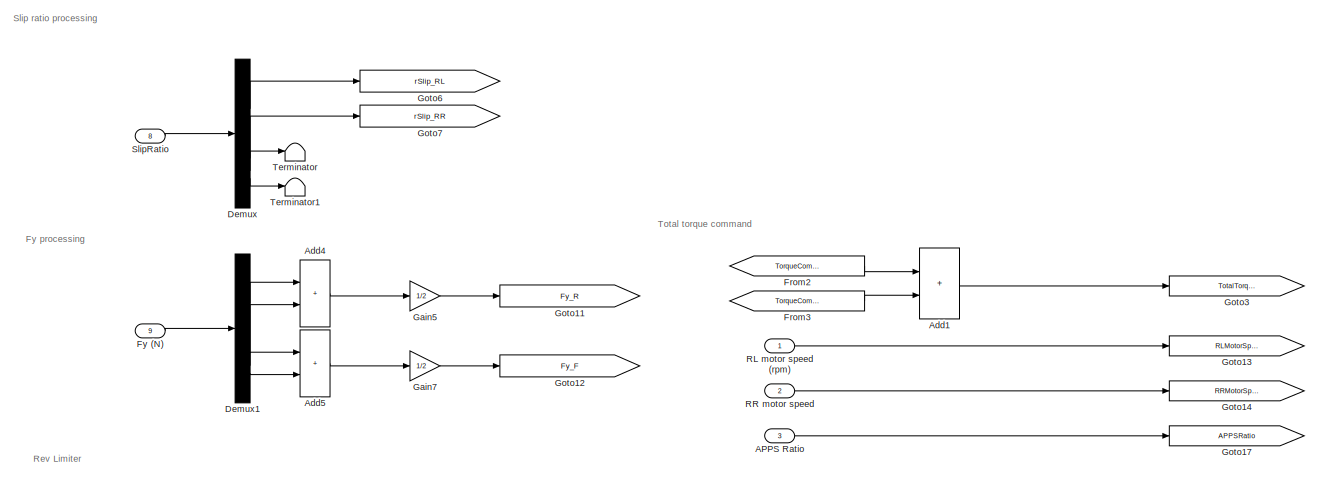
[diagram: root canvas - part 1/5, full width, top band]
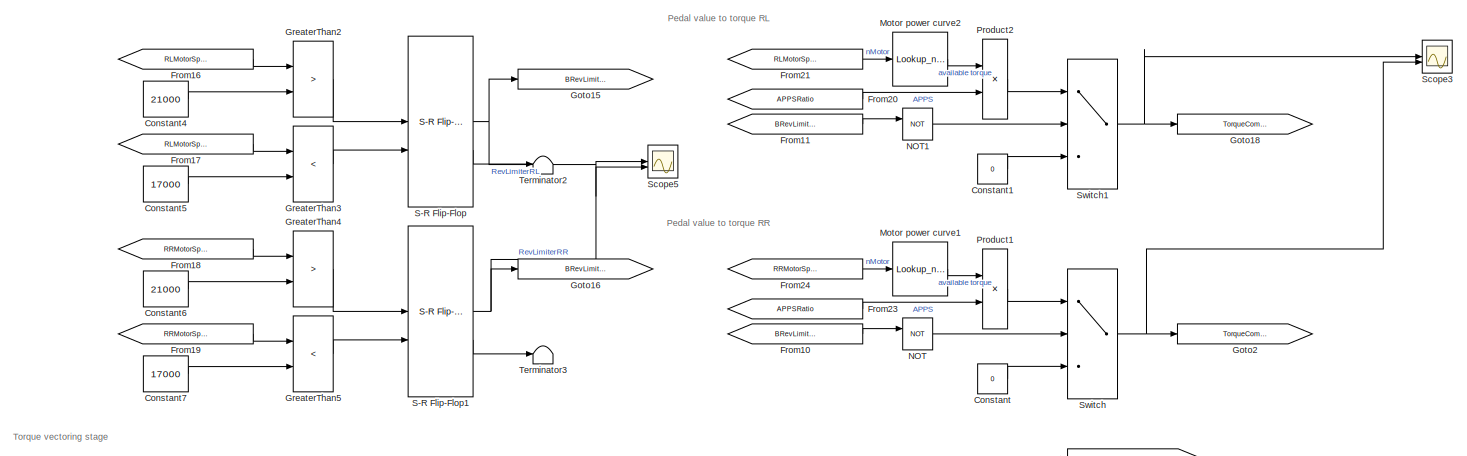
[diagram: root canvas - part 2/5, full width, top band]
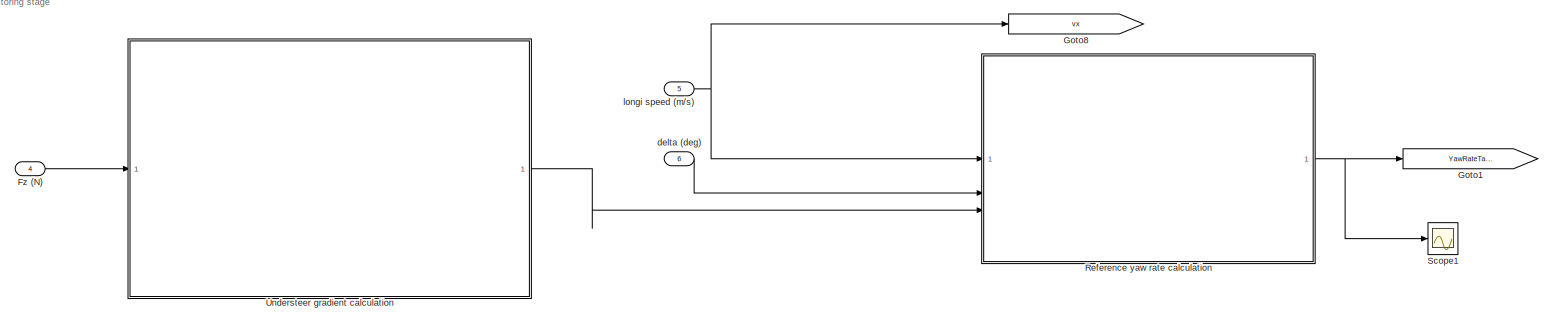
[diagram: root canvas - part 3/5, full width, middle band]
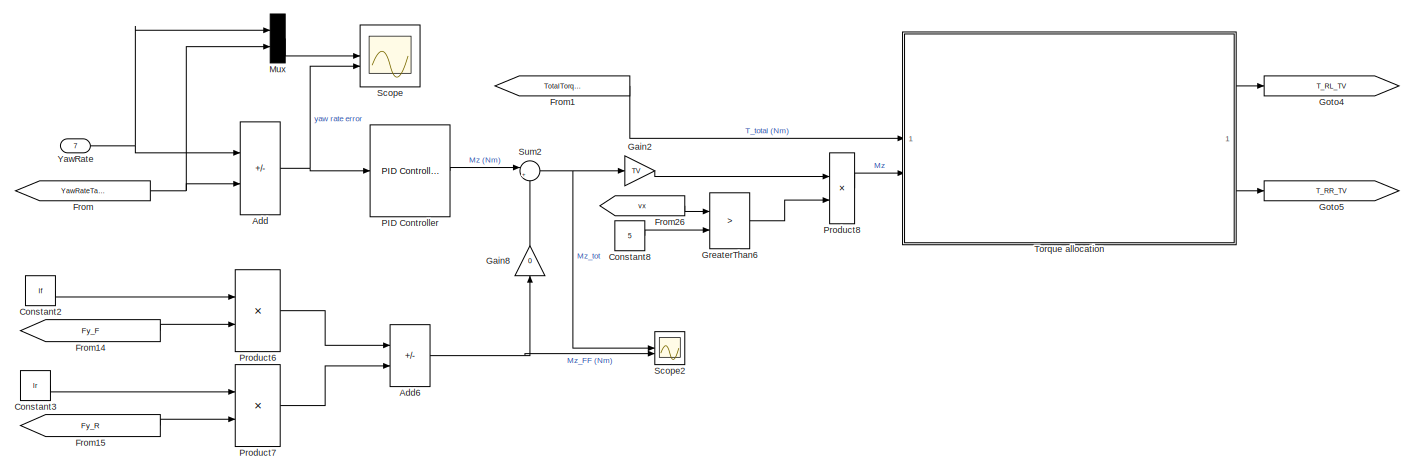
[diagram: root canvas - part 4/5, full width, middle band]
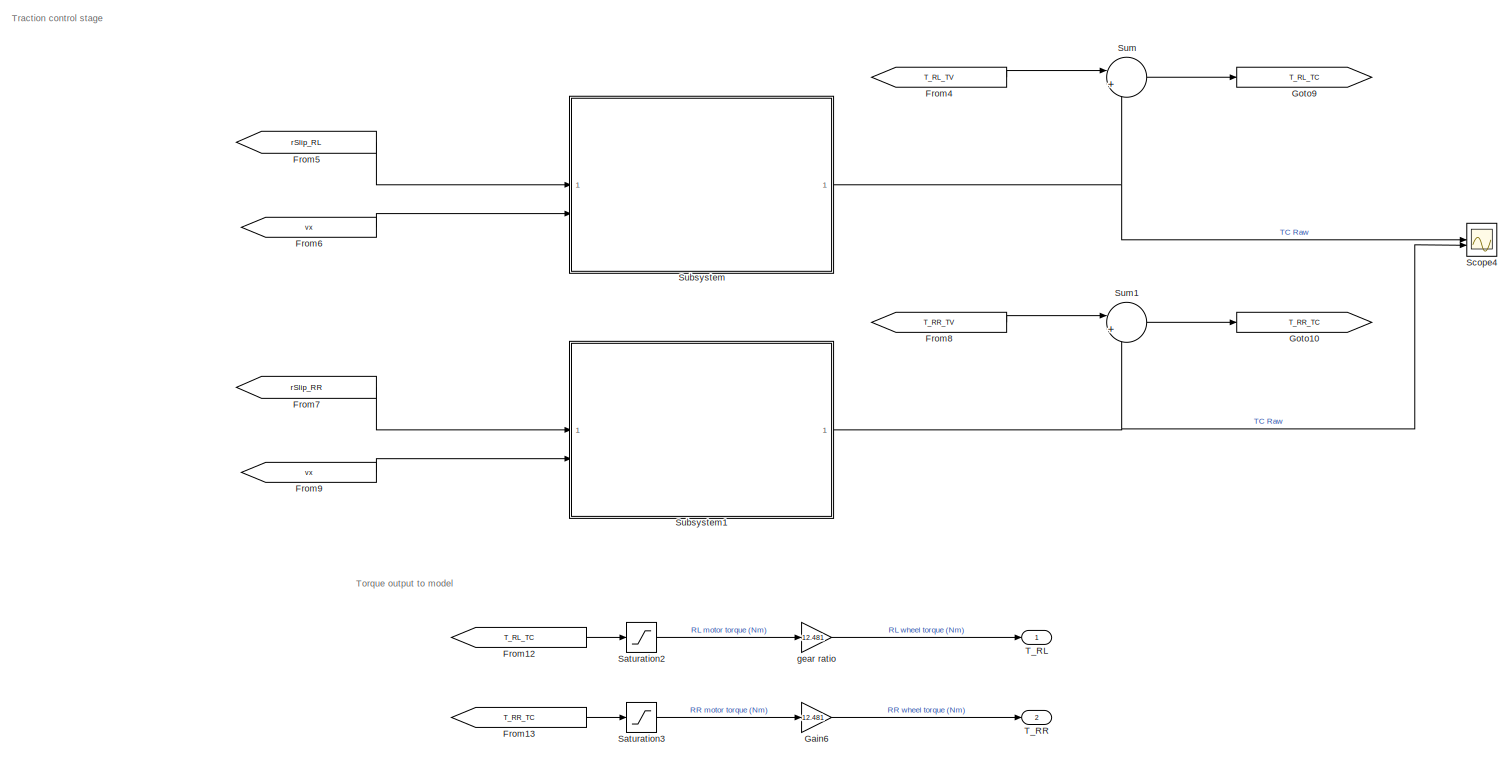
[diagram: root canvas - part 5/5, full width, bottom band]
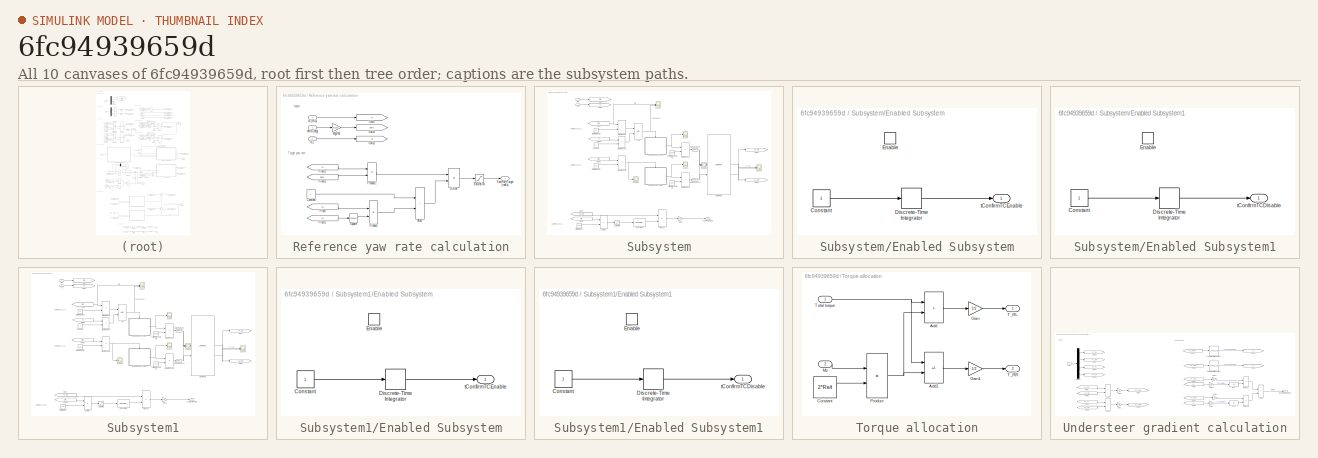
[diagram: thumbnail index - all 10 canvases of the model, root first then tree order]
MODEL slx_6fc94939659d
KIND model
CONFIG AbsTol = auto
CONFIG EnableMultiTasking = off
CONFIG FixedStep = Ts
CONFIG MaxStep = auto
CONFIG MinStep = auto
CONFIG RelTol = 1e-3
CONFIG SampleTimeConstraint = Unconstrained
CONFIG SolverName = FixedStepDiscrete
CONFIG StartTime = 0.0
CONFIG StopTime = 10.0
BLOCK [Inport] APPS Ratio
  Port = 3
BLOCK [Sum] Add
  IconShape = rectangular
  Inputs = +-
BLOCK [Sum] Add1
  IconShape = rectangular
BLOCK [Sum] Add4
  IconShape = rectangular
BLOCK [Sum] Add5
  IconShape = rectangular
BLOCK [Sum] Add6
  IconShape = rectangular
  Inputs = +-
BLOCK [Constant] Constant
  Value = 0
BLOCK [Constant] Constant1
  Value = 0
BLOCK [Constant] Constant2
  Value = lf
BLOCK [Constant] Constant3
  Value = lr
BLOCK [Constant] Constant4
  Value = 21000
BLOCK [Constant] Constant5
  Value = 17000
BLOCK [Constant] Constant6
  Value = 21000
BLOCK [Constant] Constant7
  Value = 17000
BLOCK [Constant] Constant8
  Value = 5
BLOCK [Demux] Demux
BLOCK [Demux] Demux1
BLOCK [From] From
  GotoTag = YawRateTarget
BLOCK [From] From1
  GotoTag = TotalTorque
BLOCK [From] From10
  GotoTag = BRevLimiterOnRR
BLOCK [From] From11
  GotoTag = BRevLimiterOnRR
BLOCK [From] From12
  GotoTag = T_RL_TC
BLOCK [From] From13
  GotoTag = T_RR_TC
BLOCK [From] From14
  GotoTag = Fy_F
BLOCK [From] From15
  GotoTag = Fy_R
BLOCK [From] From16
  GotoTag = RLMotorSpeed
BLOCK [From] From17
  GotoTag = RLMotorSpeed
BLOCK [From] From18
  GotoTag = RRMotorSpeed
BLOCK [From] From19
  GotoTag = RRMotorSpeed
BLOCK [From] From2
  GotoTag = TorqueCommandRL
BLOCK [From] From20
  GotoTag = APPSRatio
BLOCK [From] From21
  GotoTag = RLMotorSpeed
BLOCK [From] From23
  GotoTag = APPSRatio
BLOCK [From] From24
  GotoTag = RRMotorSpeed
BLOCK [From] From26
  GotoTag = vx
BLOCK [From] From3
  GotoTag = TorqueCommandRR
BLOCK [From] From4
  GotoTag = T_RL_TV
BLOCK [From] From5
  GotoTag = rSlip_RL
BLOCK [From] From6
  GotoTag = vx
BLOCK [From] From7
  GotoTag = rSlip_RR
BLOCK [From] From8
  GotoTag = T_RR_TV
BLOCK [From] From9
  GotoTag = vx
BLOCK [Inport] Fy (N)
  Port = 9
BLOCK [Inport] Fz (N)
  Port = 4
BLOCK [Gain] Gain2
  Gain = TV
BLOCK [Gain] Gain5
  Gain = 1/2
BLOCK [Gain] Gain6
  Gain = 12.481
BLOCK [Gain] Gain7
  Gain = 1/2
BLOCK [Gain] Gain8
  Gain = 0
  NameLocation = right
BLOCK [Goto] Goto1
  GotoTag = YawRateTarget
BLOCK [Goto] Goto10
  GotoTag = T_RR_TC
BLOCK [Goto] Goto11
  GotoTag = Fy_R
BLOCK [Goto] Goto12
  GotoTag = Fy_F
BLOCK [Goto] Goto13
  GotoTag = RLMotorSpeed
BLOCK [Goto] Goto14
  GotoTag = RRMotorSpeed
BLOCK [Goto] Goto15
  GotoTag = BRevLimiterOnRL
BLOCK [Goto] Goto16
  GotoTag = BRevLimiterOnRR
BLOCK [Goto] Goto17
  GotoTag = APPSRatio
BLOCK [Goto] Goto18
  GotoTag = TorqueCommandRL
BLOCK [Goto] Goto2
  GotoTag = TorqueCommandRR
BLOCK [Goto] Goto3
  GotoTag = TotalTorque
BLOCK [Goto] Goto4
  GotoTag = T_RL_TV
BLOCK [Goto] Goto5
  GotoTag = T_RR_TV
BLOCK [Goto] Goto6
  GotoTag = rSlip_RL
BLOCK [Goto] Goto7
  GotoTag = rSlip_RR
BLOCK [Goto] Goto8
  GotoTag = vx
BLOCK [Goto] Goto9
  GotoTag = T_RL_TC
BLOCK [RelationalOperator] GreaterThan2
  InputSameDT = off
  Operator = >
  OutDataTypeStr = boolean
  RndMeth = Simplest
BLOCK [RelationalOperator] GreaterThan3
  InputSameDT = off
  Operator = <
  OutDataTypeStr = boolean
  RndMeth = Simplest
BLOCK [RelationalOperator] GreaterThan4
  InputSameDT = off
  Operator = >
  OutDataTypeStr = boolean
  RndMeth = Simplest
BLOCK [RelationalOperator] GreaterThan5
  InputSameDT = off
  Operator = <
  OutDataTypeStr = boolean
  RndMeth = Simplest
BLOCK [RelationalOperator] GreaterThan6
  InputSameDT = off
  Operator = >
  OutDataTypeStr = boolean
  RndMeth = Simplest
BLOCK [Lookup_n-D] Motor power curve1
  BreakpointsForDimension1 = [0 11500 20000 20001]
  ExtrapMethod = Clip
  InputPortMap = u0
  InternalRulePriority = Speed
  NumberOfTableDimensions = 1
  RndMeth = Simplest
  Table = [32 32 18 0]
  UseLastTableValue = on
BLOCK [Lookup_n-D] Motor power curve2
  BreakpointsForDimension1 = [0 11500 20000 20001]
  ExtrapMethod = Clip
  InputPortMap = u0
  InternalRulePriority = Speed
  NumberOfTableDimensions = 1
  RndMeth = Simplest
  Table = [32 32 18 0]
  UseLastTableValue = on
BLOCK [Mux] Mux
  DisplayOption = bar
  Inputs = 2
BLOCK [Logic] NOT
  AllPortsSameDT = off
  IconShape = distinctive
  Operator = NOT
  OutDataTypeStr = boolean
BLOCK [Logic] NOT1
  AllPortsSameDT = off
  IconShape = distinctive
  Operator = NOT
  OutDataTypeStr = boolean
BLOCK [Reference] PID Controller  REF=slpidlib/PID Controller
  LibrarySourceBlock = simulink/Continuous/PID Controller
  SourceBlock = slpidlib/PID Controller
  SourceType = PID 1dof
BLOCK [Product] Product1
BLOCK [Product] Product2
BLOCK [Product] Product6
BLOCK [Product] Product7
BLOCK [Product] Product8
BLOCK [Inport] RL motor speed (rpm)
BLOCK [Inport] RR motor speed
  Port = 2
BLOCK [SubSystem] Reference yaw rate calculation
BLOCK [Sum] Reference yaw rate calculation/Add
  IconShape = rectangular
BLOCK [Constant] Reference yaw rate calculation/Constant
  Value = L
BLOCK [Product] Reference yaw rate calculation/Divide
  Inputs = */
BLOCK [From] Reference yaw rate calculation/From
  GotoTag = Ku
BLOCK [From] Reference yaw rate calculation/From1
  GotoTag = vx
BLOCK [From] Reference yaw rate calculation/From2
  GotoTag = vx
BLOCK [From] Reference yaw rate calculation/From3
  GotoTag = delta
BLOCK [Goto] Reference yaw rate calculation/Goto
  GotoTag = vx
BLOCK [Goto] Reference yaw rate calculation/Goto1
  GotoTag = delta
BLOCK [Goto] Reference yaw rate calculation/Goto2
  GotoTag = Ku
BLOCK [Inport] Reference yaw rate calculation/Ku
  Port = 3
BLOCK [Product] Reference yaw rate calculation/Product
BLOCK [Product] Reference yaw rate calculation/Product1
BLOCK [Saturate] Reference yaw rate calculation/Saturation
  LowerLimit = -1.5
  UpperLimit = 1.5
BLOCK [Math] Reference yaw rate calculation/Square
  Operator = square
BLOCK [Outport] Reference yaw rate calculation/YawRateTarget (rad//s)
BLOCK [Gain] Reference yaw rate calculation/deg2rad
  Gain = pi/180
BLOCK [Inport] Reference yaw rate calculation/delta (deg)
  Port = 2
BLOCK [Inport] Reference yaw rate calculation/vx (m//s)
BLOCK [Reference] S-R Flip-Flop  REF=simulink_extras/Flip Flops/S-R
Flip-Flop
  SourceBlock = simulink_extras/Flip Flops/S-R\nFlip-Flop
  SourceType = SRFlipFlop
BLOCK [Reference] S-R Flip-Flop1  REF=simulink_extras/Flip Flops/S-R
Flip-Flop
  SourceBlock = simulink_extras/Flip Flops/S-R\nFlip-Flop
  SourceType = SRFlipFlop
BLOCK [Saturate] Saturation2
  LowerLimit = -32
  UpperLimit = 32
BLOCK [Saturate] Saturation3
  LowerLimit = -32
  UpperLimit = 32
BLOCK [Scope] Scope
  Floating = off
  NumInputPorts = 2
  ScopeSpecificationString = Simulink.scopes.TimeScopeBlockCfg('CurrentConfiguration', extmgr.ConfigurationSet(extmgr.Configuration('Core','General UI',true),extmgr.Configuration('Core','Source UI',true),extmgr.Configuration('Sources','WiredSimulink',true),extmgr.Configuration('Visuals','Time Domain',true,'SerializedDisplays',{struct('MinYLimReal','-1.70449','MaxYLimReal','1.71333','YLabelReal','','MinYLimMag','0.00000','MaxY...<+2205ch>
BLOCK [Scope] Scope1
  Floating = off
  NumInputPorts = 1
  ScopeSpecificationString = Simulink.scopes.TimeScopeBlockCfg('CurrentConfiguration', extmgr.ConfigurationSet(extmgr.Configuration('Core','General UI',true),extmgr.Configuration('Core','Source UI',true),extmgr.Configuration('Sources','WiredSimulink',true,'DataLoggingVariableName','ScopeData1'),extmgr.Configuration('Visuals','Time Domain',true,'SerializedDisplays',{struct('MinYLimReal','-1.00000','MaxYLimReal','1.00000','YLab...<+1478ch>
BLOCK [Scope] Scope2
  Floating = off
  NumInputPorts = 2
  ScopeSpecificationString = Simulink.scopes.TimeScopeBlockCfg('CurrentConfiguration', extmgr.ConfigurationSet(extmgr.Configuration('Core','General UI',true),extmgr.Configuration('Core','Source UI',true),extmgr.Configuration('Sources','WiredSimulink',true,'DataLoggingVariableName','ScopeData2'),extmgr.Configuration('Visuals','Time Domain',true,'SerializedDisplays',{struct('MinYLimReal','-1217.73435','MaxYLimReal','1217.56796'...<+1580ch>
BLOCK [Scope] Scope3
  Floating = off
  NumInputPorts = 2
  ScopeSpecificationString = Simulink.scopes.TimeScopeBlockCfg('CurrentConfiguration', extmgr.ConfigurationSet(extmgr.Configuration('Core','General UI',true),extmgr.Configuration('Core','Source UI',true),extmgr.Configuration('Sources','WiredSimulink',true,'DataLoggingVariableName','ScopeData1'),extmgr.Configuration('Visuals','Time Domain',true,'SerializedDisplays',{struct('MinYLimReal','-4.00000','MaxYLimReal','36.00000','YLa...<+1863ch>
BLOCK [Scope] Scope4
  Floating = off
  NumInputPorts = 2
  ScopeSpecificationString = Simulink.scopes.TimeScopeBlockCfg('CurrentConfiguration', extmgr.ConfigurationSet(extmgr.Configuration('Core','General UI',true),extmgr.Configuration('Core','Source UI',true),extmgr.Configuration('Sources','WiredSimulink',true,'DataLoggingVariableName','ScopeData5'),extmgr.Configuration('Visuals','Time Domain',true,'SerializedDisplays',{struct('MinYLimReal','-3.75','MaxYLimReal','33.75','YLabelRea...<+1521ch>
BLOCK [Scope] Scope5
  Floating = off
  NumInputPorts = 2
  ScopeSpecificationString = Simulink.scopes.TimeScopeBlockCfg('CurrentConfiguration', extmgr.ConfigurationSet(extmgr.Configuration('Core','General UI',true),extmgr.Configuration('Core','Source UI',true),extmgr.Configuration('Sources','WiredSimulink',true,'DataLoggingVariableName','ScopeData3'),extmgr.Configuration('Visuals','Time Domain',true,'SerializedDisplays',{struct('MinYLimReal','-0.125','MaxYLimReal','1.125','YLabelRe...<+1539ch>
BLOCK [Inport] SlipRatio
  Port = 8
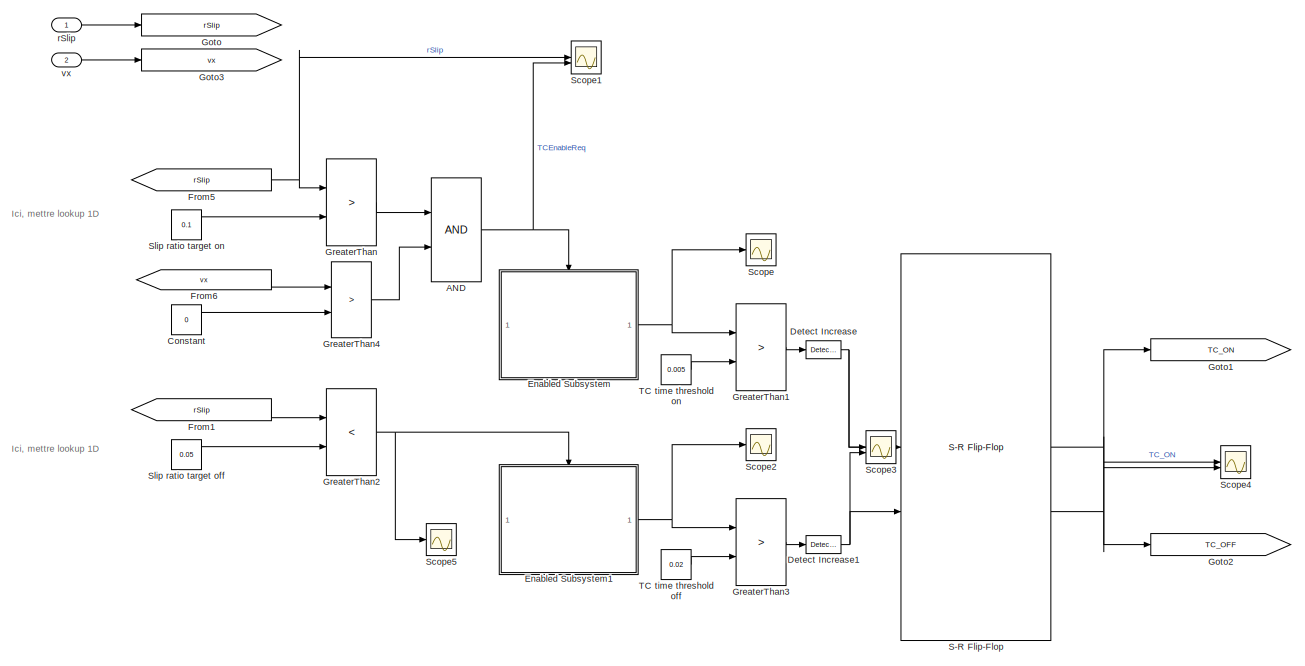
[diagram: Subsystem - part 1/2, full width, middle band]
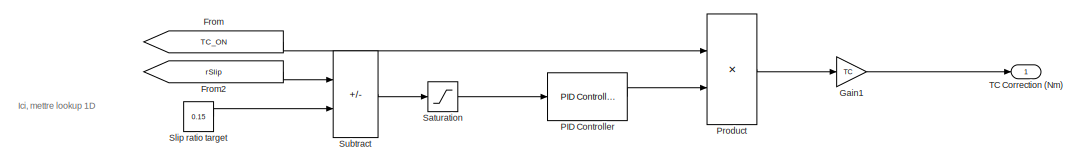
[diagram: Subsystem - part 2/2, full width, bottom band]
BLOCK [SubSystem] Subsystem
BLOCK [Logic] Subsystem/AND
  AllPortsSameDT = off
  OutDataTypeStr = boolean
BLOCK [Constant] Subsystem/Constant
  Value = 0
BLOCK [Reference] Subsystem/Detect Increase  REF=simulink/Logic and Bit
Operations/Detect
Increase
  SourceBlock = simulink/Logic and Bit\nOperations/Detect\nIncrease
  SourceType = Detect Increase
BLOCK [Reference] Subsystem/Detect Increase1  REF=simulink/Logic and Bit
Operations/Detect
Increase
  SourceBlock = simulink/Logic and Bit\nOperations/Detect\nIncrease
  SourceType = Detect Increase
BLOCK [SubSystem] Subsystem/Enabled Subsystem
  TreatAsAtomicUnit = on
BLOCK [Constant] Subsystem/Enabled Subsystem/Constant
BLOCK [DiscreteIntegrator] Subsystem/Enabled Subsystem/Discrete-Time Integrator
  ICPrevOutput = DiscIntNeverNeededParam
  ICPrevScaledInput = DiscIntNeverNeededParam
  InitialConditionSetting = Auto
  SampleTime = -1
BLOCK [EnablePort] Subsystem/Enabled Subsystem/Enable
  StatesWhenEnabling = reset
BLOCK [Outport] Subsystem/Enabled Subsystem/tConfirmTCEnable
BLOCK [SubSystem] Subsystem/Enabled Subsystem1
  TreatAsAtomicUnit = on
BLOCK [Constant] Subsystem/Enabled Subsystem1/Constant
BLOCK [DiscreteIntegrator] Subsystem/Enabled Subsystem1/Discrete-Time Integrator
  ICPrevOutput = DiscIntNeverNeededParam
  ICPrevScaledInput = DiscIntNeverNeededParam
  InitialConditionSetting = Auto
  SampleTime = -1
BLOCK [EnablePort] Subsystem/Enabled Subsystem1/Enable
  StatesWhenEnabling = reset
BLOCK [Outport] Subsystem/Enabled Subsystem1/tConfirmTCDisable
BLOCK [From] Subsystem/From
  GotoTag = TC_ON
BLOCK [From] Subsystem/From1
  GotoTag = rSlip
BLOCK [From] Subsystem/From2
  GotoTag = rSlip
BLOCK [From] Subsystem/From5
  GotoTag = rSlip
BLOCK [From] Subsystem/From6
  GotoTag = vx
BLOCK [Gain] Subsystem/Gain1
  Gain = TC
BLOCK [Goto] Subsystem/Goto
  GotoTag = rSlip
BLOCK [Goto] Subsystem/Goto1
  GotoTag = TC_ON
BLOCK [Goto] Subsystem/Goto2
  GotoTag = TC_OFF
BLOCK [Goto] Subsystem/Goto3
  GotoTag = vx
BLOCK [RelationalOperator] Subsystem/GreaterThan
  InputSameDT = off
  Operator = >
  OutDataTypeStr = boolean
  RndMeth = Simplest
BLOCK [RelationalOperator] Subsystem/GreaterThan1
  InputSameDT = off
  Operator = >
  OutDataTypeStr = boolean
  RndMeth = Simplest
BLOCK [RelationalOperator] Subsystem/GreaterThan2
  InputSameDT = off
  Operator = <
  OutDataTypeStr = boolean
  RndMeth = Simplest
BLOCK [RelationalOperator] Subsystem/GreaterThan3
  InputSameDT = off
  Operator = >
  OutDataTypeStr = boolean
  RndMeth = Simplest
BLOCK [RelationalOperator] Subsystem/GreaterThan4
  InputSameDT = off
  Operator = >
  OutDataTypeStr = boolean
  RndMeth = Simplest
BLOCK [Reference] Subsystem/PID Controller  REF=slpidlib/PID Controller
  LibrarySourceBlock = simulink/Continuous/PID Controller
  SourceBlock = slpidlib/PID Controller
  SourceType = PID 1dof
BLOCK [Product] Subsystem/Product
BLOCK [Reference] Subsystem/S-R Flip-Flop  REF=simulink_extras/Flip Flops/S-R
Flip-Flop
  SourceBlock = simulink_extras/Flip Flops/S-R\nFlip-Flop
  SourceType = SRFlipFlop
BLOCK [Saturate] Subsystem/Saturation
  LowerLimit = 0
  UpperLimit = 1
BLOCK [Scope] Subsystem/Scope
  Floating = off
  NumInputPorts = 1
  ScopeSpecificationString = Simulink.scopes.TimeScopeBlockCfg('CurrentConfiguration', extmgr.ConfigurationSet(extmgr.Configuration('Core','General UI',true),extmgr.Configuration('Core','Source UI',true),extmgr.Configuration('Sources','WiredSimulink',true),extmgr.Configuration('Visuals','Time Domain',true,'SerializedDisplays',{struct('MinYLimReal','-0.38','MaxYLimReal','3.42','YLabelReal','','MinYLimMag','0.00000','MaxYLimMag...<+1437ch>
BLOCK [Scope] Subsystem/Scope1
  Floating = off
  NumInputPorts = 2
  ScopeSpecificationString = Simulink.scopes.TimeScopeBlockCfg('CurrentConfiguration', extmgr.ConfigurationSet(extmgr.Configuration('Core','General UI',true),extmgr.Configuration('Core','Source UI',true),extmgr.Configuration('Sources','WiredSimulink',true,'DataLoggingVariableName','ScopeData4'),extmgr.Configuration('Visuals','Time Domain',true,'SerializedDisplays',{struct('MinYLimReal','-0.125','MaxYLimReal','1.125','YLabelRe...<+2210ch>
BLOCK [Scope] Subsystem/Scope2
  Floating = off
  NumInputPorts = 1
  ScopeSpecificationString = Simulink.scopes.TimeScopeBlockCfg('CurrentConfiguration', extmgr.ConfigurationSet(extmgr.Configuration('Core','General UI',true),extmgr.Configuration('Core','Source UI',true),extmgr.Configuration('Sources','WiredSimulink',true,'DataLoggingVariableName','ScopeData2'),extmgr.Configuration('Visuals','Time Domain',true,'SerializedDisplays',{struct('MinYLimReal','-0.71188','MaxYLimReal','6.40688','YLab...<+1495ch>
BLOCK [Scope] Subsystem/Scope3
  Floating = off
  NumInputPorts = 2
  ScopeSpecificationString = Simulink.scopes.TimeScopeBlockCfg('CurrentConfiguration', extmgr.ConfigurationSet(extmgr.Configuration('Core','General UI',true),extmgr.Configuration('Core','Source UI',true),extmgr.Configuration('Sources','WiredSimulink',true,'DataLoggingVariableName','ScopeData4'),extmgr.Configuration('Visuals','Time Domain',true,'SerializedDisplays',{struct('MinYLimReal','-0.125','MaxYLimReal','1.125','YLabelRe...<+1546ch>
BLOCK [Scope] Subsystem/Scope4
  Floating = off
  NumInputPorts = 2
  ScopeSpecificationString = Simulink.scopes.TimeScopeBlockCfg('CurrentConfiguration', extmgr.ConfigurationSet(extmgr.Configuration('Core','General UI',true),extmgr.Configuration('Core','Source UI',true),extmgr.Configuration('Sources','WiredSimulink',true,'DataLoggingVariableName','ScopeData2'),extmgr.Configuration('Visuals','Time Domain',true,'SerializedDisplays',{struct('MinYLimReal','-0.125','MaxYLimReal','1.125','YLabelRe...<+1531ch>
BLOCK [Scope] Subsystem/Scope5
  Floating = off
  NumInputPorts = 1
  ScopeSpecificationString = Simulink.scopes.TimeScopeBlockCfg('CurrentConfiguration', extmgr.ConfigurationSet(extmgr.Configuration('Core','General UI',true),extmgr.Configuration('Core','Source UI',true),extmgr.Configuration('Sources','WiredSimulink',true,'DataLoggingVariableName','ScopeData3'),extmgr.Configuration('Visuals','Time Domain',true,'SerializedDisplays',{struct('MinYLimReal','-0.125','MaxYLimReal','1.125','YLabelRe...<+1441ch>
BLOCK [Constant] Subsystem/Slip ratio target
  Value = 0.15
BLOCK [Constant] Subsystem/Slip ratio target off
  Value = 0.05
BLOCK [Constant] Subsystem/Slip ratio target on
  Value = 0.1
BLOCK [Sum] Subsystem/Subtract
  IconShape = rectangular
  Inputs = +-
BLOCK [Outport] Subsystem/TC Correction (Nm)
BLOCK [Constant] Subsystem/TC time threshold off
  Value = 0.02
BLOCK [Constant] Subsystem/TC time threshold on
  Value = 0.005
BLOCK [Inport] Subsystem/rSlip
BLOCK [Inport] Subsystem/vx
  Port = 2
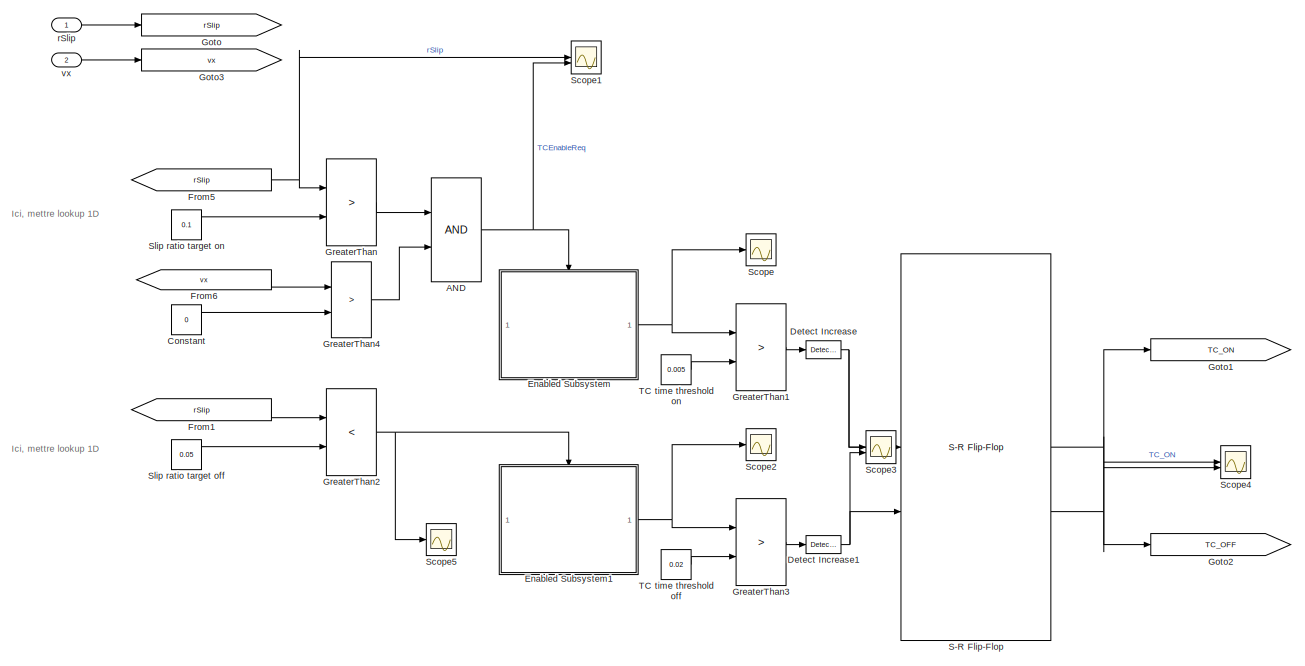
[diagram: Subsystem1 - part 1/2, full width, middle band]
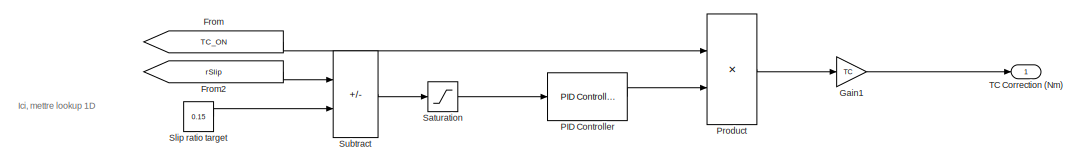
[diagram: Subsystem1 - part 2/2, full width, bottom band]
BLOCK [SubSystem] Subsystem1
BLOCK [Logic] Subsystem1/AND
  AllPortsSameDT = off
  OutDataTypeStr = boolean
BLOCK [Constant] Subsystem1/Constant
  Value = 0
BLOCK [Reference] Subsystem1/Detect Increase  REF=simulink/Logic and Bit
Operations/Detect
Increase
  SourceBlock = simulink/Logic and Bit\nOperations/Detect\nIncrease
  SourceType = Detect Increase
BLOCK [Reference] Subsystem1/Detect Increase1  REF=simulink/Logic and Bit
Operations/Detect
Increase
  SourceBlock = simulink/Logic and Bit\nOperations/Detect\nIncrease
  SourceType = Detect Increase
BLOCK [SubSystem] Subsystem1/Enabled Subsystem
  TreatAsAtomicUnit = on
BLOCK [Constant] Subsystem1/Enabled Subsystem/Constant
BLOCK [DiscreteIntegrator] Subsystem1/Enabled Subsystem/Discrete-Time Integrator
  ICPrevOutput = DiscIntNeverNeededParam
  ICPrevScaledInput = DiscIntNeverNeededParam
  InitialConditionSetting = Auto
  SampleTime = -1
BLOCK [EnablePort] Subsystem1/Enabled Subsystem/Enable
  StatesWhenEnabling = reset
BLOCK [Outport] Subsystem1/Enabled Subsystem/tConfirmTCEnable
BLOCK [SubSystem] Subsystem1/Enabled Subsystem1
  TreatAsAtomicUnit = on
BLOCK [Constant] Subsystem1/Enabled Subsystem1/Constant
BLOCK [DiscreteIntegrator] Subsystem1/Enabled Subsystem1/Discrete-Time Integrator
  ICPrevOutput = DiscIntNeverNeededParam
  ICPrevScaledInput = DiscIntNeverNeededParam
  InitialConditionSetting = Auto
  SampleTime = -1
BLOCK [EnablePort] Subsystem1/Enabled Subsystem1/Enable
  StatesWhenEnabling = reset
BLOCK [Outport] Subsystem1/Enabled Subsystem1/tConfirmTCDisable
BLOCK [From] Subsystem1/From
  GotoTag = TC_ON
BLOCK [From] Subsystem1/From1
  GotoTag = rSlip
BLOCK [From] Subsystem1/From2
  GotoTag = rSlip
BLOCK [From] Subsystem1/From5
  GotoTag = rSlip
BLOCK [From] Subsystem1/From6
  GotoTag = vx
BLOCK [Gain] Subsystem1/Gain1
  Gain = TC
BLOCK [Goto] Subsystem1/Goto
  GotoTag = rSlip
BLOCK [Goto] Subsystem1/Goto1
  GotoTag = TC_ON
BLOCK [Goto] Subsystem1/Goto2
  GotoTag = TC_OFF
BLOCK [Goto] Subsystem1/Goto3
  GotoTag = vx
BLOCK [RelationalOperator] Subsystem1/GreaterThan
  InputSameDT = off
  Operator = >
  OutDataTypeStr = boolean
  RndMeth = Simplest
BLOCK [RelationalOperator] Subsystem1/GreaterThan1
  InputSameDT = off
  Operator = >
  OutDataTypeStr = boolean
  RndMeth = Simplest
BLOCK [RelationalOperator] Subsystem1/GreaterThan2
  InputSameDT = off
  Operator = <
  OutDataTypeStr = boolean
  RndMeth = Simplest
BLOCK [RelationalOperator] Subsystem1/GreaterThan3
  InputSameDT = off
  Operator = >
  OutDataTypeStr = boolean
  RndMeth = Simplest
BLOCK [RelationalOperator] Subsystem1/GreaterThan4
  InputSameDT = off
  Operator = >
  OutDataTypeStr = boolean
  RndMeth = Simplest
BLOCK [Reference] Subsystem1/PID Controller  REF=slpidlib/PID Controller
  SourceBlock = slpidlib/PID Controller
  SourceType = PID 1dof
BLOCK [Product] Subsystem1/Product
BLOCK [Reference] Subsystem1/S-R Flip-Flop  REF=simulink_extras/Flip Flops/S-R
Flip-Flop
  SourceBlock = simulink_extras/Flip Flops/S-R\nFlip-Flop
  SourceType = SRFlipFlop
BLOCK [Saturate] Subsystem1/Saturation
  LowerLimit = 0
  UpperLimit = 1
BLOCK [Scope] Subsystem1/Scope
  Floating = off
  NumInputPorts = 1
  ScopeSpecificationString = Simulink.scopes.TimeScopeBlockCfg('CurrentConfiguration', extmgr.ConfigurationSet(extmgr.Configuration('Core','General UI',true),extmgr.Configuration('Core','Source UI',true),extmgr.Configuration('Sources','WiredSimulink',true),extmgr.Configuration('Visuals','Time Domain',true,'SerializedDisplays',{struct('MinYLimReal','-0.38','MaxYLimReal','3.42','YLabelReal','','MinYLimMag','0.00000','MaxYLimMag...<+1437ch>
BLOCK [Scope] Subsystem1/Scope1
  Floating = off
  NumInputPorts = 2
  ScopeSpecificationString = Simulink.scopes.TimeScopeBlockCfg('CurrentConfiguration', extmgr.ConfigurationSet(extmgr.Configuration('Core','General UI',true),extmgr.Configuration('Core','Source UI',true),extmgr.Configuration('Sources','WiredSimulink',true,'DataLoggingVariableName','ScopeData4'),extmgr.Configuration('Visuals','Time Domain',true,'SerializedDisplays',{struct('MinYLimReal','-0.125','MaxYLimReal','1.125','YLabelRe...<+2210ch>
BLOCK [Scope] Subsystem1/Scope2
  Floating = off
  NumInputPorts = 1
  ScopeSpecificationString = Simulink.scopes.TimeScopeBlockCfg('CurrentConfiguration', extmgr.ConfigurationSet(extmgr.Configuration('Core','General UI',true),extmgr.Configuration('Core','Source UI',true),extmgr.Configuration('Sources','WiredSimulink',true,'DataLoggingVariableName','ScopeData2'),extmgr.Configuration('Visuals','Time Domain',true,'SerializedDisplays',{struct('MinYLimReal','-0.71188','MaxYLimReal','6.40688','YLab...<+1495ch>
BLOCK [Scope] Subsystem1/Scope3
  Floating = off
  NumInputPorts = 2
  ScopeSpecificationString = Simulink.scopes.TimeScopeBlockCfg('CurrentConfiguration', extmgr.ConfigurationSet(extmgr.Configuration('Core','General UI',true),extmgr.Configuration('Core','Source UI',true),extmgr.Configuration('Sources','WiredSimulink',true,'DataLoggingVariableName','ScopeData4'),extmgr.Configuration('Visuals','Time Domain',true,'SerializedDisplays',{struct('MinYLimReal','-0.125','MaxYLimReal','1.125','YLabelRe...<+1546ch>
BLOCK [Scope] Subsystem1/Scope4
  Floating = off
  NumInputPorts = 2
  ScopeSpecificationString = Simulink.scopes.TimeScopeBlockCfg('CurrentConfiguration', extmgr.ConfigurationSet(extmgr.Configuration('Core','General UI',true),extmgr.Configuration('Core','Source UI',true),extmgr.Configuration('Sources','WiredSimulink',true,'DataLoggingVariableName','ScopeData2'),extmgr.Configuration('Visuals','Time Domain',true,'SerializedDisplays',{struct('MinYLimReal','-0.125','MaxYLimReal','1.125','YLabelRe...<+1531ch>
BLOCK [Scope] Subsystem1/Scope5
  Floating = off
  NumInputPorts = 1
  ScopeSpecificationString = Simulink.scopes.TimeScopeBlockCfg('CurrentConfiguration', extmgr.ConfigurationSet(extmgr.Configuration('Core','General UI',true),extmgr.Configuration('Core','Source UI',true),extmgr.Configuration('Sources','WiredSimulink',true,'DataLoggingVariableName','ScopeData3'),extmgr.Configuration('Visuals','Time Domain',true,'SerializedDisplays',{struct('MinYLimReal','-0.125','MaxYLimReal','1.125','YLabelRe...<+1441ch>
BLOCK [Constant] Subsystem1/Slip ratio target
  Value = 0.15
BLOCK [Constant] Subsystem1/Slip ratio target off
  Value = 0.05
BLOCK [Constant] Subsystem1/Slip ratio target on
  Value = 0.1
BLOCK [Sum] Subsystem1/Subtract
  IconShape = rectangular
  Inputs = +-
BLOCK [Outport] Subsystem1/TC Correction (Nm)
BLOCK [Constant] Subsystem1/TC time threshold off
  Value = 0.02
BLOCK [Constant] Subsystem1/TC time threshold on
  Value = 0.005
BLOCK [Inport] Subsystem1/rSlip
BLOCK [Inport] Subsystem1/vx
  Port = 2
BLOCK [Sum] Sum
  Inputs = |+-
BLOCK [Sum] Sum1
  Inputs = |+-
BLOCK [Sum] Sum2
  Inputs = |+-
BLOCK [Switch] Switch
  Criteria = u2 > Threshold
  InputSameDT = off
  SaturateOnIntegerOverflow = off
BLOCK [Switch] Switch1
  Criteria = u2 > Threshold
  InputSameDT = off
  SaturateOnIntegerOverflow = off
BLOCK [Outport] T_RL
BLOCK [Outport] T_RR
  Port = 2
BLOCK [Terminator] Terminator
BLOCK [Terminator] Terminator1
BLOCK [Terminator] Terminator2
BLOCK [Terminator] Terminator3
BLOCK [SubSystem] Torque allocation
BLOCK [Sum] Torque allocation/Add
  IconShape = rectangular
BLOCK [Sum] Torque allocation/Add1
  IconShape = rectangular
  Inputs = +-
BLOCK [Constant] Torque allocation/Constant
  Value = 2*Re/t
BLOCK [Gain] Torque allocation/Gain
  Gain = 1/2
BLOCK [Gain] Torque allocation/Gain1
  Gain = 1/2
BLOCK [Inport] Torque allocation/Mz
  Port = 2
BLOCK [Product] Torque allocation/Product
BLOCK [Outport] Torque allocation/T_RL
BLOCK [Outport] Torque allocation/T_RR
  Port = 2
BLOCK [Inport] Torque allocation/Total torque
BLOCK [SubSystem] Understeer gradient calculation
BLOCK [Sum] Understeer gradient calculation/Add
  IconShape = rectangular
BLOCK [Sum] Understeer gradient calculation/Add1
  IconShape = rectangular
BLOCK [Sum] Understeer gradient calculation/Add2
  IconShape = rectangular
  Inputs = +-
BLOCK [Lookup_n-D] Understeer gradient calculation/Cornering stiffness front
  BreakpointsForDimension1 = [200 650 1450 1600]
  InputPortMap = u0
  InternalRulePriority = Speed
  NumberOfTableDimensions = 1
  RndMeth = Simplest
  Table = [64 286 496 520]
BLOCK [Lookup_n-D] Understeer gradient calculation/Cornering stiffness rear
  BreakpointsForDimension1 = [200 650 1450 1600]
  InputPortMap = u0
  InternalRulePriority = Speed
  NumberOfTableDimensions = 1
  RndMeth = Simplest
  Table = [64 286 496 520]
BLOCK [Demux] Understeer gradient calculation/Demux
BLOCK [Fcn] Understeer gradient calculation/Fcn
  Expr = 1/u
BLOCK [Fcn] Understeer gradient calculation/Fcn1
  Expr = 1/u
BLOCK [From] Understeer gradient calculation/From
  GotoTag = Fz_RL
BLOCK [From] Understeer gradient calculation/From1
  GotoTag = Fz_RR
BLOCK [From] Understeer gradient calculation/From2
  GotoTag = Fz_FL
BLOCK [From] Understeer gradient calculation/From3
  GotoTag = Fz_FR
BLOCK [From] Understeer gradient calculation/From4
  GotoTag = Fz_Rear
BLOCK [From] Understeer gradient calculation/From5
  GotoTag = Fz_Front
BLOCK [From] Understeer gradient calculation/From6
  GotoTag = Fz_Rear
BLOCK [From] Understeer gradient calculation/From7
  GotoTag = Fz_Front
BLOCK [From] Understeer gradient calculation/From8
  GotoTag = Cf
BLOCK [From] Understeer gradient calculation/From9
  GotoTag = Cr
BLOCK [Inport] Understeer gradient calculation/Fz (N)
BLOCK [Gain] Understeer gradient calculation/Gain
  Gain = 1/2
BLOCK [Gain] Understeer gradient calculation/Gain1
  Gain = 1/2
BLOCK [Gain] Understeer gradient calculation/Gain2
  Gain = 1/g
BLOCK [Gain] Understeer gradient calculation/Gain3
  Gain = 1/g
BLOCK [Gain] Understeer gradient calculation/Gain4
  Gain = 180/pi
BLOCK [Gain] Understeer gradient calculation/Gain5
  Gain = 180/pi
BLOCK [Goto] Understeer gradient calculation/Goto1
  GotoTag = Cr
BLOCK [Goto] Understeer gradient calculation/Goto2
  GotoTag = Cf
BLOCK [Goto] Understeer gradient calculation/Goto3
  GotoTag = Fz_RL
BLOCK [Goto] Understeer gradient calculation/Goto4
  GotoTag = Fz_RR
BLOCK [Goto] Understeer gradient calculation/Goto5
  GotoTag = Fz_FL
BLOCK [Goto] Understeer gradient calculation/Goto6
  GotoTag = Fz_FR
BLOCK [Goto] Understeer gradient calculation/Goto7
  GotoTag = Fz_Rear
BLOCK [Goto] Understeer gradient calculation/Goto8
  GotoTag = Fz_Front
BLOCK [Product] Understeer gradient calculation/Product
BLOCK [Product] Understeer gradient calculation/Product1
BLOCK [Outport] Understeer gradient calculation/Understeer gradient
BLOCK [Inport] YawRate
  Port = 7
BLOCK [Inport] delta (deg)
  Port = 6
BLOCK [Gain] gear ratio
  Gain = 12.481
BLOCK [Inport] longi speed (m//s)
  Port = 5
ANNOTATION (root): Fy processing
ANNOTATION (root): Pedal value to torque RL
ANNOTATION (root): Pedal value to torque RR
ANNOTATION (root): Rev Limiter
ANNOTATION (root): Slip ratio processing
ANNOTATION (root): Torque output to model
ANNOTATION (root): Torque vectoring stage
ANNOTATION (root): Total torque command
ANNOTATION (root): Traction control stage
ANNOTATION Reference yaw rate calculation: Inputs
ANNOTATION Reference yaw rate calculation: Target yaw rate
ANNOTATION Subsystem: Ici, mettre lookup 1D
ANNOTATION Subsystem1: Ici, mettre lookup 1D
ANNOTATION Understeer gradient calculation: Inputs
ANNOTATION Understeer gradient calculation: USG Calculation
LINE APPS Ratio:1 -> Goto17:1
LINE Add1:1 -> Goto3:1
LINE Add4:1 -> Gain5:1
LINE Add5:1 -> Gain7:1
NET Add6:1 -> Gain8:1, Scope2:2
NET Add:1 -> PID Controller:1, Scope:2
LINE Constant1:1 -> Switch1:3
LINE Constant2:1 -> Product6:1
LINE Constant3:1 -> Product7:1
LINE Constant4:1 -> GreaterThan2:2
LINE Constant5:1 -> GreaterThan3:2
LINE Constant6:1 -> GreaterThan4:2
LINE Constant7:1 -> GreaterThan5:2
LINE Constant8:1 -> GreaterThan6:2
LINE Constant:1 -> Switch:3
LINE Demux1:1 -> Add4:1
LINE Demux1:2 -> Add4:2
LINE Demux1:3 -> Add5:1
LINE Demux1:4 -> Add5:2
LINE Demux:1 -> Goto6:1
LINE Demux:2 -> Goto7:1
LINE Demux:3 -> Terminator:1
LINE Demux:4 -> Terminator1:1
LINE From10:1 -> NOT:1
LINE From11:1 -> NOT1:1
LINE From12:1 -> Saturation2:1
LINE From13:1 -> Saturation3:1
LINE From14:1 -> Product6:2
LINE From15:1 -> Product7:2
LINE From16:1 -> GreaterThan2:1
LINE From17:1 -> GreaterThan3:1
LINE From18:1 -> GreaterThan4:1
LINE From19:1 -> GreaterThan5:1
LINE From1:1 -> Torque allocation:1
LINE From20:1 -> Product2:2
LINE From21:1 -> Motor power curve2:1
LINE From23:1 -> Product1:2
LINE From24:1 -> Motor power curve1:1
LINE From26:1 -> GreaterThan6:1
LINE From2:1 -> Add1:1
LINE From3:1 -> Add1:2
LINE From4:1 -> Sum:1
LINE From5:1 -> Subsystem:1
LINE From6:1 -> Subsystem:2
LINE From7:1 -> Subsystem1:1
LINE From8:1 -> Sum1:1
LINE From9:1 -> Subsystem1:2
NET From:1 -> Add:2, Mux:2
LINE Fy (N):1 -> Demux1:1
LINE Fz (N):1 -> Understeer gradient calculation:1
LINE Gain2:1 -> Product8:1
LINE Gain5:1 -> Goto11:1
LINE Gain6:1 -> T_RR:1
LINE Gain7:1 -> Goto12:1
LINE Gain8:1 -> Sum2:2
LINE GreaterThan2:1 -> S-R Flip-Flop:1
LINE GreaterThan3:1 -> S-R Flip-Flop:2
LINE GreaterThan4:1 -> S-R Flip-Flop1:1
LINE GreaterThan5:1 -> S-R Flip-Flop1:2
LINE GreaterThan6:1 -> Product8:2
LINE Motor power curve1:1 -> Product1:1
LINE Motor power curve2:1 -> Product2:1
LINE Mux:1 -> Scope:1
LINE NOT1:1 -> Switch1:2
LINE NOT:1 -> Switch:2
LINE PID Controller:1 -> Sum2:1
LINE Product1:1 -> Switch:1
LINE Product2:1 -> Switch1:1
LINE Product6:1 -> Add6:1
LINE Product7:1 -> Add6:2
LINE Product8:1 -> Torque allocation:2
LINE RL motor speed (rpm):1 -> Goto13:1
LINE RR motor speed:1 -> Goto14:1
LINE Reference yaw rate calculation/Add:1 -> Reference yaw rate calculation/Divide:2
LINE Reference yaw rate calculation/Constant:1 -> Reference yaw rate calculation/Add:1
LINE Reference yaw rate calculation/Divide:1 -> Reference yaw rate calculation/Saturation:1
LINE Reference yaw rate calculation/From1:1 -> Reference yaw rate calculation/Square:1
LINE Reference yaw rate calculation/From2:1 -> Reference yaw rate calculation/Product1:1
LINE Reference yaw rate calculation/From3:1 -> Reference yaw rate calculation/Product1:2
LINE Reference yaw rate calculation/From:1 -> Reference yaw rate calculation/Product:1
LINE Reference yaw rate calculation/Ku:1 -> Reference yaw rate calculation/Goto2:1
LINE Reference yaw rate calculation/Product1:1 -> Reference yaw rate calculation/Divide:1
LINE Reference yaw rate calculation/Product:1 -> Reference yaw rate calculation/Add:2
LINE Reference yaw rate calculation/Saturation:1 -> Reference yaw rate calculation/YawRateTarget (rad//s):1
LINE Reference yaw rate calculation/Square:1 -> Reference yaw rate calculation/Product:2
LINE Reference yaw rate calculation/deg2rad:1 -> Reference yaw rate calculation/Goto1:1
LINE Reference yaw rate calculation/delta (deg):1 -> Reference yaw rate calculation/deg2rad:1
LINE Reference yaw rate calculation/vx (m//s):1 -> Reference yaw rate calculation/Goto:1
NET Reference yaw rate calculation:1 -> Goto1:1, Scope1:1
NET S-R Flip-Flop1:1 -> Goto16:1, Scope5:2
LINE S-R Flip-Flop1:2 -> Terminator3:1
NET S-R Flip-Flop:1 -> Goto15:1, Scope5:1
LINE S-R Flip-Flop:2 -> Terminator2:1
LINE Saturation2:1 -> gear ratio:1
LINE Saturation3:1 -> Gain6:1
LINE SlipRatio:1 -> Demux:1
NET Subsystem/AND:1 -> Subsystem/Enabled Subsystem:enable, Subsystem/Scope1:2
LINE Subsystem/Constant:1 -> Subsystem/GreaterThan4:2
NET Subsystem/Detect Increase1:1 -> Subsystem/S-R Flip-Flop:2, Subsystem/Scope3:2
NET Subsystem/Detect Increase:1 -> Subsystem/S-R Flip-Flop:1, Subsystem/Scope3:1
LINE Subsystem/Enabled Subsystem/Constant:1 -> Subsystem/Enabled Subsystem/Discrete-Time Integrator:1
LINE Subsystem/Enabled Subsystem/Discrete-Time Integrator:1 -> Subsystem/Enabled Subsystem/tConfirmTCEnable:1
LINE Subsystem/Enabled Subsystem1/Constant:1 -> Subsystem/Enabled Subsystem1/Discrete-Time Integrator:1
LINE Subsystem/Enabled Subsystem1/Discrete-Time Integrator:1 -> Subsystem/Enabled Subsystem1/tConfirmTCDisable:1
NET Subsystem/Enabled Subsystem1:1 -> Subsystem/GreaterThan3:1, Subsystem/Scope2:1
NET Subsystem/Enabled Subsystem:1 -> Subsystem/GreaterThan1:1, Subsystem/Scope:1
LINE Subsystem/From1:1 -> Subsystem/GreaterThan2:1
LINE Subsystem/From2:1 -> Subsystem/Subtract:1
NET Subsystem/From5:1 -> Subsystem/GreaterThan:1, Subsystem/Scope1:1
LINE Subsystem/From6:1 -> Subsystem/GreaterThan4:1
LINE Subsystem/From:1 -> Subsystem/Product:1
LINE Subsystem/Gain1:1 -> Subsystem/TC Correction (Nm):1
LINE Subsystem/GreaterThan1:1 -> Subsystem/Detect Increase:1
NET Subsystem/GreaterThan2:1 -> Subsystem/Enabled Subsystem1:enable, Subsystem/Scope5:1
LINE Subsystem/GreaterThan3:1 -> Subsystem/Detect Increase1:1
LINE Subsystem/GreaterThan4:1 -> Subsystem/AND:2
LINE Subsystem/GreaterThan:1 -> Subsystem/AND:1
LINE Subsystem/PID Controller:1 -> Subsystem/Product:2
LINE Subsystem/Product:1 -> Subsystem/Gain1:1
NET Subsystem/S-R Flip-Flop:1 -> Subsystem/Goto1:1, Subsystem/Scope4:1
NET Subsystem/S-R Flip-Flop:2 -> Subsystem/Goto2:1, Subsystem/Scope4:2
LINE Subsystem/Saturation:1 -> Subsystem/PID Controller:1
LINE Subsystem/Slip ratio target off:1 -> Subsystem/GreaterThan2:2
LINE Subsystem/Slip ratio target on:1 -> Subsystem/GreaterThan:2
LINE Subsystem/Slip ratio target:1 -> Subsystem/Subtract:2
LINE Subsystem/Subtract:1 -> Subsystem/Saturation:1
LINE Subsystem/TC time threshold off:1 -> Subsystem/GreaterThan3:2
LINE Subsystem/TC time threshold on:1 -> Subsystem/GreaterThan1:2
LINE Subsystem/rSlip:1 -> Subsystem/Goto:1
LINE Subsystem/vx:1 -> Subsystem/Goto3:1
NET Subsystem1/AND:1 -> Subsystem1/Enabled Subsystem:enable, Subsystem1/Scope1:2
LINE Subsystem1/Constant:1 -> Subsystem1/GreaterThan4:2
NET Subsystem1/Detect Increase1:1 -> Subsystem1/S-R Flip-Flop:2, Subsystem1/Scope3:2
NET Subsystem1/Detect Increase:1 -> Subsystem1/S-R Flip-Flop:1, Subsystem1/Scope3:1
LINE Subsystem1/Enabled Subsystem/Constant:1 -> Subsystem1/Enabled Subsystem/Discrete-Time Integrator:1
LINE Subsystem1/Enabled Subsystem/Discrete-Time Integrator:1 -> Subsystem1/Enabled Subsystem/tConfirmTCEnable:1
LINE Subsystem1/Enabled Subsystem1/Constant:1 -> Subsystem1/Enabled Subsystem1/Discrete-Time Integrator:1
LINE Subsystem1/Enabled Subsystem1/Discrete-Time Integrator:1 -> Subsystem1/Enabled Subsystem1/tConfirmTCDisable:1
NET Subsystem1/Enabled Subsystem1:1 -> Subsystem1/GreaterThan3:1, Subsystem1/Scope2:1
NET Subsystem1/Enabled Subsystem:1 -> Subsystem1/GreaterThan1:1, Subsystem1/Scope:1
LINE Subsystem1/From1:1 -> Subsystem1/GreaterThan2:1
LINE Subsystem1/From2:1 -> Subsystem1/Subtract:1
NET Subsystem1/From5:1 -> Subsystem1/GreaterThan:1, Subsystem1/Scope1:1
LINE Subsystem1/From6:1 -> Subsystem1/GreaterThan4:1
LINE Subsystem1/From:1 -> Subsystem1/Product:1
LINE Subsystem1/Gain1:1 -> Subsystem1/TC Correction (Nm):1
LINE Subsystem1/GreaterThan1:1 -> Subsystem1/Detect Increase:1
NET Subsystem1/GreaterThan2:1 -> Subsystem1/Enabled Subsystem1:enable, Subsystem1/Scope5:1
LINE Subsystem1/GreaterThan3:1 -> Subsystem1/Detect Increase1:1
LINE Subsystem1/GreaterThan4:1 -> Subsystem1/AND:2
LINE Subsystem1/GreaterThan:1 -> Subsystem1/AND:1
LINE Subsystem1/PID Controller:1 -> Subsystem1/Product:2
LINE Subsystem1/Product:1 -> Subsystem1/Gain1:1
NET Subsystem1/S-R Flip-Flop:1 -> Subsystem1/Goto1:1, Subsystem1/Scope4:1
NET Subsystem1/S-R Flip-Flop:2 -> Subsystem1/Goto2:1, Subsystem1/Scope4:2
LINE Subsystem1/Saturation:1 -> Subsystem1/PID Controller:1
LINE Subsystem1/Slip ratio target off:1 -> Subsystem1/GreaterThan2:2
LINE Subsystem1/Slip ratio target on:1 -> Subsystem1/GreaterThan:2
LINE Subsystem1/Slip ratio target:1 -> Subsystem1/Subtract:2
LINE Subsystem1/Subtract:1 -> Subsystem1/Saturation:1
LINE Subsystem1/TC time threshold off:1 -> Subsystem1/GreaterThan3:2
LINE Subsystem1/TC time threshold on:1 -> Subsystem1/GreaterThan1:2
LINE Subsystem1/rSlip:1 -> Subsystem1/Goto:1
LINE Subsystem1/vx:1 -> Subsystem1/Goto3:1
NET Subsystem1:1 -> Scope4:2, Sum1:2
NET Subsystem:1 -> Scope4:1, Sum:2
LINE Sum1:1 -> Goto10:1
NET Sum2:1 -> Gain2:1, Scope2:1
LINE Sum:1 -> Goto9:1
NET Switch1:1 -> Goto18:1, Scope3:1
NET Switch:1 -> Goto2:1, Scope3:2
LINE Torque allocation/Add1:1 -> Torque allocation/Gain1:1
LINE Torque allocation/Add:1 -> Torque allocation/Gain:1
LINE Torque allocation/Constant:1 -> Torque allocation/Product:2
LINE Torque allocation/Gain1:1 -> Torque allocation/T_RR:1
LINE Torque allocation/Gain:1 -> Torque allocation/T_RL:1
LINE Torque allocation/Mz:1 -> Torque allocation/Product:1
NET Torque allocation/Product:1 -> Torque allocation/Add1:2, Torque allocation/Add:2
NET Torque allocation/Total torque:1 -> Torque allocation/Add1:1, Torque allocation/Add:1
LINE Torque allocation:1 -> Goto4:1
LINE Torque allocation:2 -> Goto5:1
LINE Understeer gradient calculation/Add1:1 -> Understeer gradient calculation/Gain1:1
LINE Understeer gradient calculation/Add2:1 -> Understeer gradient calculation/Understeer gradient:1
LINE Understeer gradient calculation/Add:1 -> Understeer gradient calculation/Gain:1
LINE Understeer gradient calculation/Cornering stiffness front:1 -> Understeer gradient calculation/Goto2:1
LINE Understeer gradient calculation/Cornering stiffness rear:1 -> Understeer gradient calculation/Goto1:1
LINE Understeer gradient calculation/Demux:1 -> Understeer gradient calculation/Goto3:1
LINE Understeer gradient calculation/Demux:2 -> Understeer gradient calculation/Goto4:1
LINE Understeer gradient calculation/Demux:3 -> Understeer gradient calculation/Goto5:1
LINE Understeer gradient calculation/Demux:4 -> Understeer gradient calculation/Goto6:1
LINE Understeer gradient calculation/Fcn1:1 -> Understeer gradient calculation/Product1:2
LINE Understeer gradient calculation/Fcn:1 -> Understeer gradient calculation/Product:2
LINE Understeer gradient calculation/From1:1 -> Understeer gradient calculation/Add:2
LINE Understeer gradient calculation/From2:1 -> Understeer gradient calculation/Add1:1
LINE Understeer gradient calculation/From3:1 -> Understeer gradient calculation/Add1:2
LINE Understeer gradient calculation/From4:1 -> Understeer gradient calculation/Cornering stiffness rear:1
LINE Understeer gradient calculation/From5:1 -> Understeer gradient calculation/Cornering stiffness front:1
LINE Understeer gradient calculation/From6:1 -> Understeer gradient calculation/Gain2:1
LINE Understeer gradient calculation/From7:1 -> Understeer gradient calculation/Gain3:1
LINE Understeer gradient calculation/From8:1 -> Understeer gradient calculation/Gain4:1
LINE Understeer gradient calculation/From9:1 -> Understeer gradient calculation/Gain5:1
LINE Understeer gradient calculation/From:1 -> Understeer gradient calculation/Add:1
LINE Understeer gradient calculation/Fz (N):1 -> Understeer gradient calculation/Demux:1
LINE Understeer gradient calculation/Gain1:1 -> Understeer gradient calculation/Goto8:1
LINE Understeer gradient calculation/Gain2:1 -> Understeer gradient calculation/Product1:1
LINE Understeer gradient calculation/Gain3:1 -> Understeer gradient calculation/Product:1
LINE Understeer gradient calculation/Gain4:1 -> Understeer gradient calculation/Fcn:1
LINE Understeer gradient calculation/Gain5:1 -> Understeer gradient calculation/Fcn1:1
LINE Understeer gradient calculation/Gain:1 -> Understeer gradient calculation/Goto7:1
LINE Understeer gradient calculation/Product1:1 -> Understeer gradient calculation/Add2:2
LINE Understeer gradient calculation/Product:1 -> Understeer gradient calculation/Add2:1
LINE Understeer gradient calculation:1 -> Reference yaw rate calculation:3
NET YawRate:1 -> Add:1, Mux:1
LINE delta (deg):1 -> Reference yaw rate calculation:2
LINE gear ratio:1 -> T_RL:1
NET longi speed (m//s):1 -> Goto8:1, Reference yaw rate calculation:1
note: NET lines group one-source signal fan-out (src -> all destinations, sorted); 1:1 wires keep LINE
